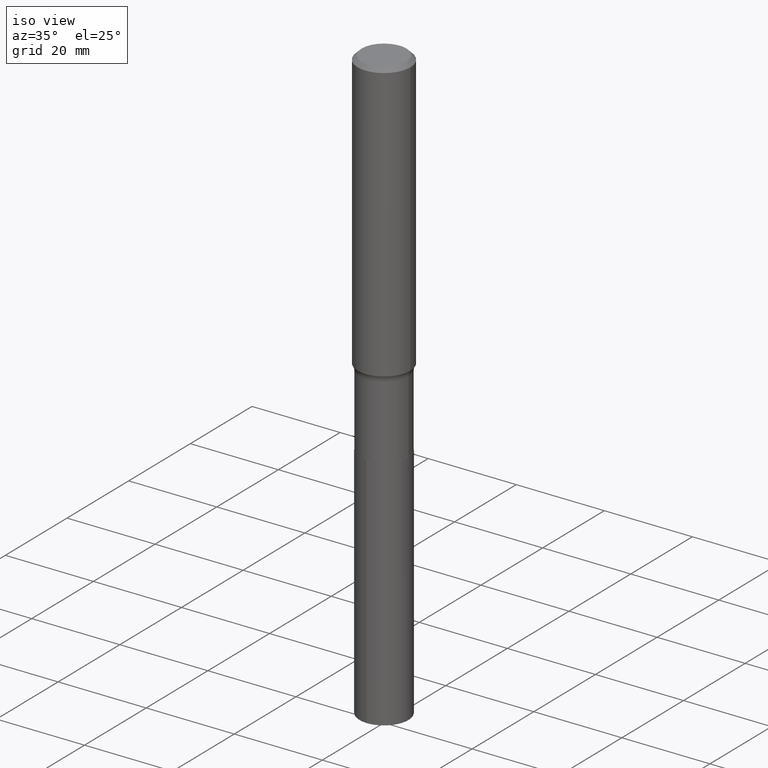
[diagram: clean part render]
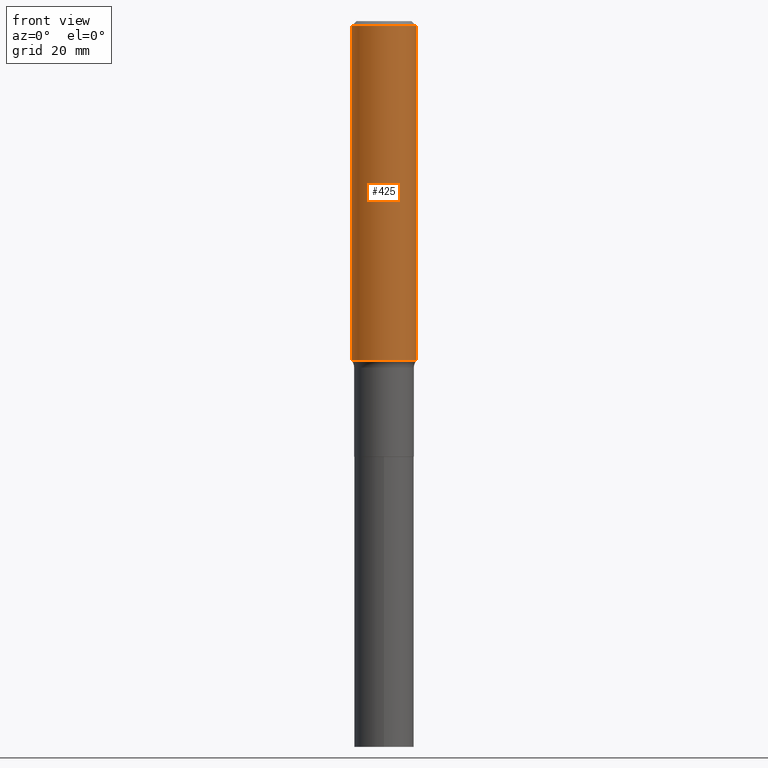
[diagram: tour spotlight — one face highlighted and labeled with its STEP entity id]
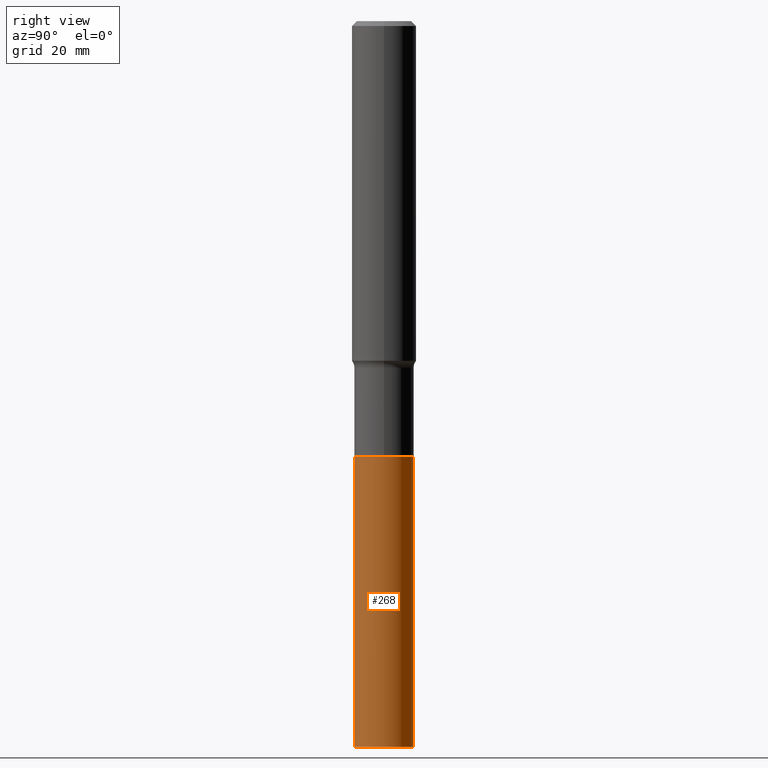
[diagram: tour spotlight — one face highlighted and labeled with its STEP entity id]
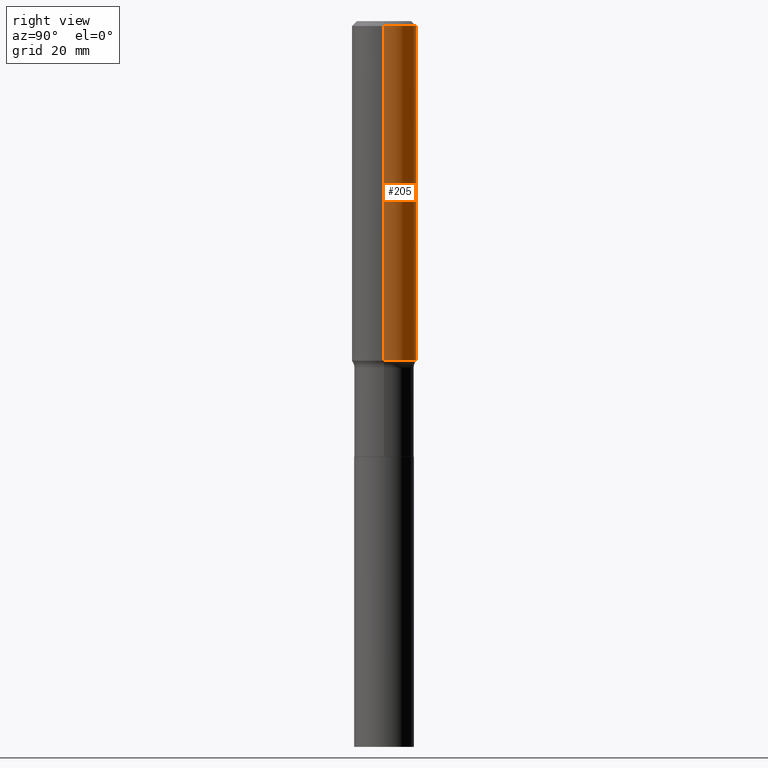
[diagram: tour spotlight — one face highlighted and labeled with its STEP entity id]
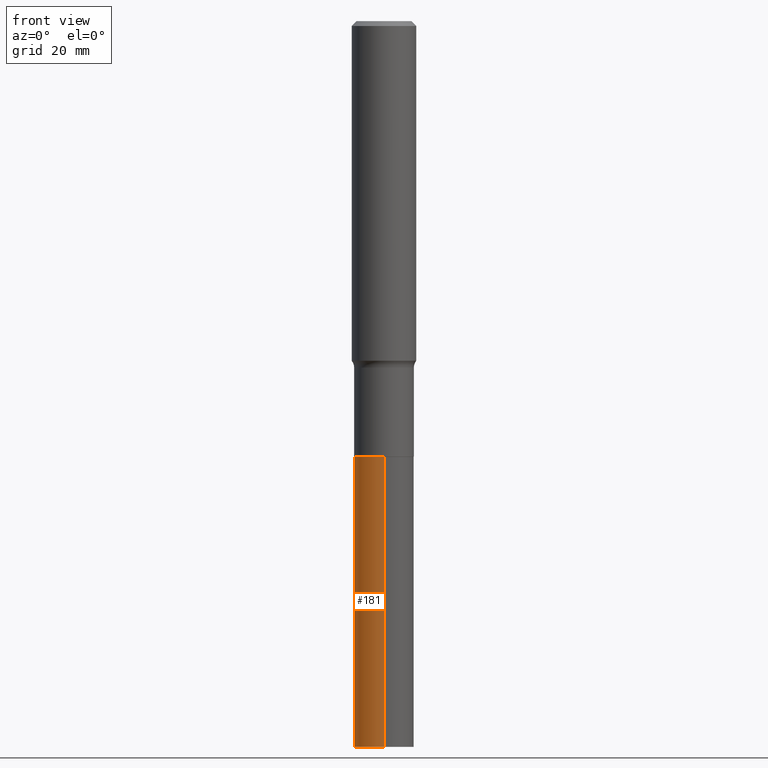
[diagram: tour spotlight — one face highlighted and labeled with its STEP entity id]
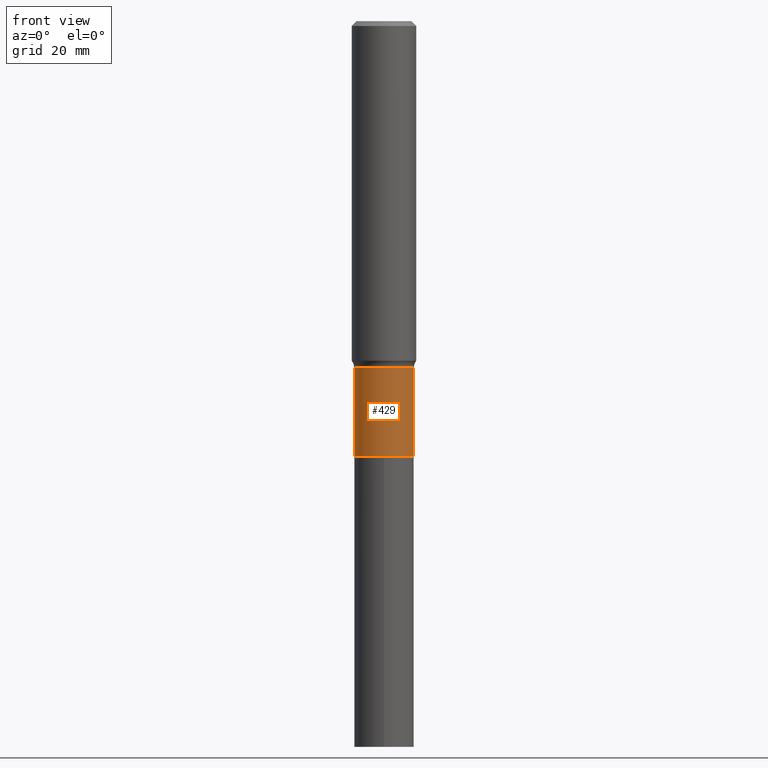
[diagram: tour spotlight — one face highlighted and labeled with its STEP entity id]
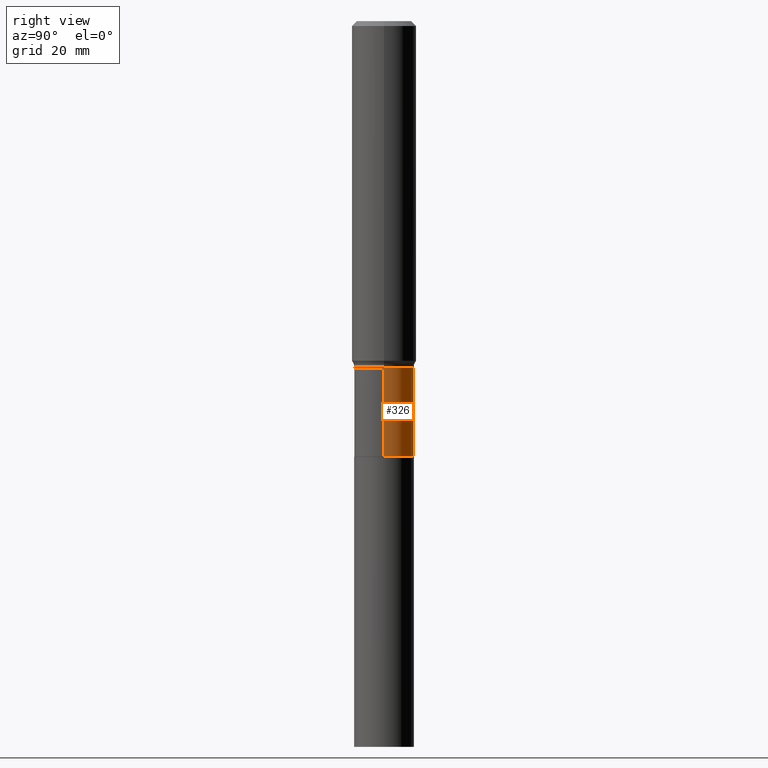
[diagram: tour spotlight — one face highlighted and labeled with its STEP entity id]
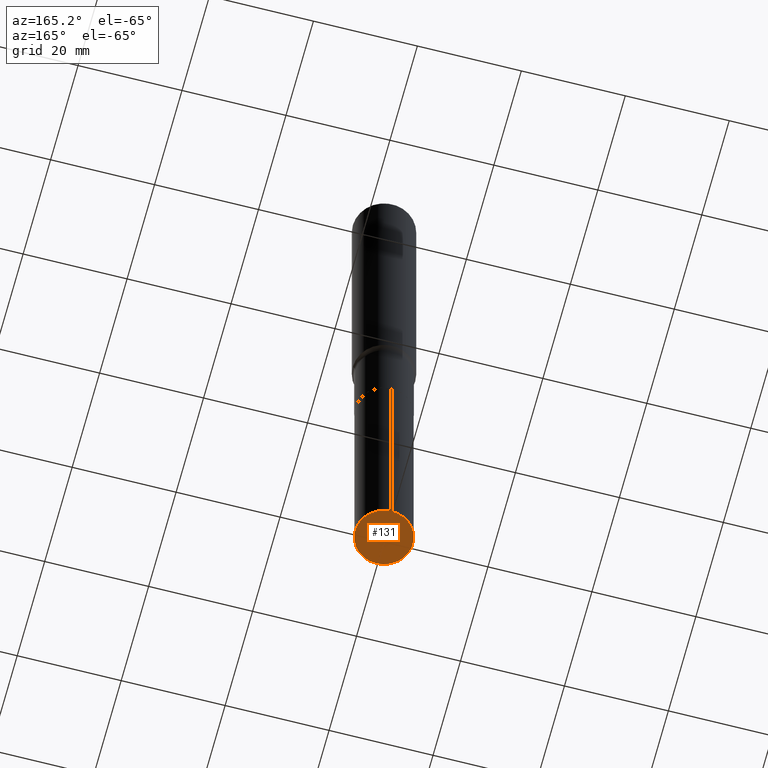
[diagram: tour spotlight — one face highlighted and labeled with its STEP entity id]
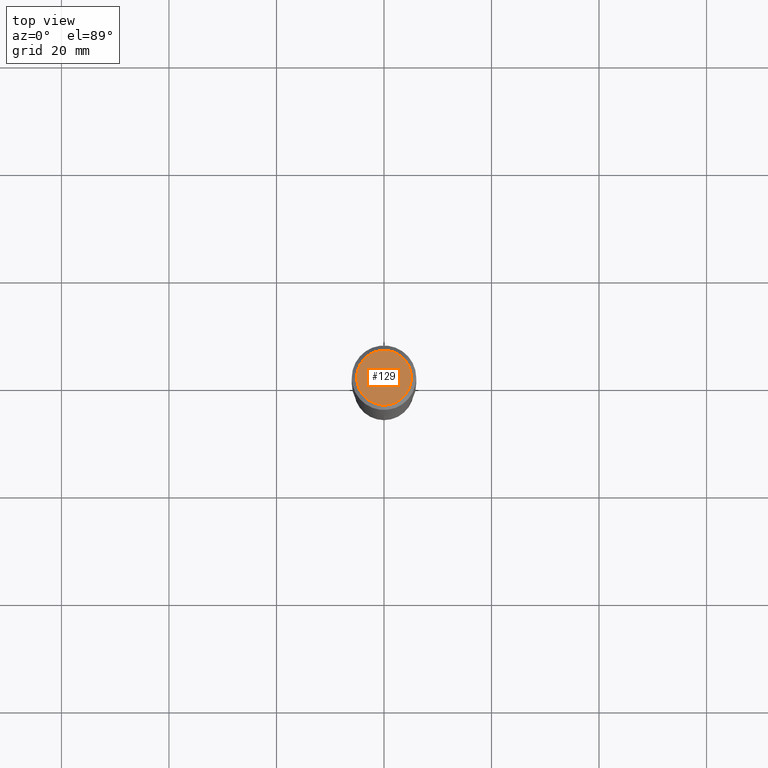
[diagram: tour spotlight — one face highlighted and labeled with its STEP entity id]
A machine part: a face-by-face anatomy tour. The part has 16 B-rep faces; the first image is the clean iso view, then the 8 largest visible faces are spotlighted one at a time (largest first), each with its STEP entity span.

Face 1 — front view, entity #425. In plain terms, the highlighted cylindrical surface (edge-blend (fillet) strip) has radius 5.9995 mm, axis along (-0, 0, 1).
Definition (entity closure, byte-faithful):
#14 = CARTESIAN_POINT ( 'NONE',  ( -0.2361999999999999933, -2.725578971937181462E-15, -0.03543000000000023908 ) ) ;
#19 = EDGE_CURVE ( 'NONE', #328, #401, #293, .T. ) ;
#27 = DIRECTION ( 'NONE',  ( -2.445468806185136597E-29, 3.491481338843145583E-15, 1.000000000000000000 ) ) ;
#32 = DIRECTION ( 'NONE',  ( -2.445468806185136597E-29, 3.491481338843145583E-15, 1.000000000000000000 ) ) ;
#42 = EDGE_CURVE ( 'NONE', #113, #401, #126, .T. ) ;
#44 = EDGE_LOOP ( 'NONE', ( #458, #137, #122, #221 ) ) ;
#50 = VECTOR ( 'NONE', #356, 39.37007874015748143 ) ;
#58 = EDGE_CURVE ( 'NONE', #343, #328, #93, .T. ) ;
#63 = CARTESIAN_POINT ( 'NONE',  ( -0.2362000000000001598, 1.678301941865357775E-15, -1.161852468318209598E-29 ) ) ;
#64 = CARTESIAN_POINT ( 'NONE',  ( 8.664295980313998742E-31, -1.237031838352134818E-16, -0.03543000000000023908 ) ) ;
#72 = CARTESIAN_POINT ( 'NONE',  ( 0.2362000000000003264, -1.033343442823936694E-14, -2.487213248760255624 ) ) ;
#75 = CARTESIAN_POINT ( 'NONE',  ( -0.2362000000000003264, -7.005756701904507710E-15, -2.487213248760255624 ) ) ;
#92 = CARTESIAN_POINT ( 'NONE',  ( 0.000000000000000000, 0.000000000000000000, 0.000000000000000000 ) ) ;
#93 = LINE ( 'NONE', #63, #50 ) ;
#96 = AXIS2_PLACEMENT_3D ( 'NONE', #64, #32, #304 ) ;
#101 = CIRCLE ( 'NONE', #446, 0.2362000000000003264 ) ;
#113 = VERTEX_POINT ( 'NONE', #72 ) ;
#122 = ORIENTED_EDGE ( 'NONE', *, *, #42, .T. ) ;
#126 = LINE ( 'NONE', #312, #186 ) ;
#137 = ORIENTED_EDGE ( 'NONE', *, *, #286, .T. ) ;
#164 = CYLINDRICAL_SURFACE ( 'NONE', #325, 0.2362000000000001598 ) ;
#186 = VECTOR ( 'NONE', #196, 39.37007874015748143 ) ;
#193 = DIRECTION ( 'NONE',  ( -2.445468806185136597E-29, 3.491481338843145583E-15, 1.000000000000000000 ) ) ;
#196 = DIRECTION ( 'NONE',  ( -2.445468806185136877E-29, 3.491481338843145188E-15, 1.000000000000000000 ) ) ;
#204 = FACE_OUTER_BOUND ( 'NONE', #44, .T. ) ;
#209 = DIRECTION ( 'NONE',  ( 1.000000000000000000, -6.982962677686266711E-15, 4.876176775795936353E-29 ) ) ;
#221 = ORIENTED_EDGE ( 'NONE', *, *, #19, .F. ) ;
#256 = CARTESIAN_POINT ( 'NONE',  ( 6.082402414173597497E-29, -8.684058643769867259E-15, -2.487213248760255624 ) ) ;
#286 = EDGE_CURVE ( 'NONE', #343, #113, #101, .T. ) ;
#293 = CIRCLE ( 'NONE', #96, 0.2361999999999999933 ) ;
#304 = DIRECTION ( 'NONE',  ( 1.000000000000000000, -6.982962677686266711E-15, 0.000000000000000000 ) ) ;
#312 = CARTESIAN_POINT ( 'NONE',  ( 0.2362000000000001598, -1.649375784469497314E-15, 1.151752954443000929E-29 ) ) ;
#318 = CARTESIAN_POINT ( 'NONE',  ( 0.2361999999999999933, -1.773078968304709711E-15, -0.03543000000000023908 ) ) ;
#325 = AXIS2_PLACEMENT_3D ( 'NONE', #92, #27, #209 ) ;
#328 = VERTEX_POINT ( 'NONE', #14 ) ;
#343 = VERTEX_POINT ( 'NONE', #75 ) ;
#356 = DIRECTION ( 'NONE',  ( -2.445468806185136877E-29, 3.491481338843145188E-15, 1.000000000000000000 ) ) ;
#370 = DIRECTION ( 'NONE',  ( 1.000000000000000000, -6.982962677686270655E-15, 0.000000000000000000 ) ) ;
#401 = VERTEX_POINT ( 'NONE', #318 ) ;
#425 = ADVANCED_FACE ( 'NONE', ( #204 ), #164, .T. ) ;
#446 = AXIS2_PLACEMENT_3D ( 'NONE', #256, #193, #370 ) ;
#458 = ORIENTED_EDGE ( 'NONE', *, *, #58, .F. ) ;

Face 2 — right view, entity #268. In plain terms, the highlighted cylindrical surface (edge-blend (fillet) strip) has radius 5.5499 mm, axis along (-0, 0, 1).
Definition (entity closure, byte-faithful):
#1 = CARTESIAN_POINT ( 'NONE',  ( -1.525777345074319177E-15, -0.2185000000000185405, -5.315000000000000391 ) ) ;
#23 = DIRECTION ( 'NONE',  ( -6.982962677686265922E-15, -1.000000000000000000, 5.001094725243502542E-15 ) ) ;
#46 = DIRECTION ( 'NONE',  ( -2.445737530587578084E-29, 3.491096510204006240E-15, 1.000000000000000000 ) ) ;
#71 = CARTESIAN_POINT ( 'NONE',  ( 1.552535877635949067E-15, 0.2184999999999888698, -3.189000000000000945 ) ) ;
#85 = EDGE_LOOP ( 'NONE', ( #291, #332, #450, #459 ) ) ;
#89 = DIRECTION ( 'NONE',  ( -2.445737530587578084E-29, 3.491096510204006240E-15, 1.000000000000000000 ) ) ;
#104 = VERTEX_POINT ( 'NONE', #1 ) ;
#141 = AXIS2_PLACEMENT_3D ( 'NONE', #444, #46, #294 ) ;
#143 = FACE_OUTER_BOUND ( 'NONE', #85, .T. ) ;
#150 = VERTEX_POINT ( 'NONE', #71 ) ;
#152 = EDGE_CURVE ( 'NONE', #260, #150, #166, .T. ) ;
#159 = CIRCLE ( 'NONE', #465, 0.2184999999999999998 ) ;
#166 = CIRCLE ( 'NONE', #313, 0.2184999999999999998 ) ;
#179 = VECTOR ( 'NONE', #89, 39.37007874015748143 ) ;
#182 = CYLINDRICAL_SURFACE ( 'NONE', #141, 0.2184999999999999998 ) ;
#185 = CARTESIAN_POINT ( 'NONE',  ( -1.525777345074371242E-15, -0.2185000000000111298, -3.188999999999999613 ) ) ;
#195 = DIRECTION ( 'NONE',  ( -2.445737530587578084E-29, 3.491096510204006240E-15, 1.000000000000000000 ) ) ;
#222 = CARTESIAN_POINT ( 'NONE',  ( 1.552535877635896607E-15, 0.2184999999999888698, -3.189000000000000945 ) ) ;
#235 = EDGE_CURVE ( 'NONE', #104, #260, #411, .T. ) ;
#259 = CARTESIAN_POINT ( 'NONE',  ( 1.552535877635922837E-15, 0.2184999999999814591, -5.315000000000003055 ) ) ;
#260 = VERTEX_POINT ( 'NONE', #185 ) ;
#263 = DIRECTION ( 'NONE',  ( -2.445737530587578084E-29, 3.491096510204006240E-15, 1.000000000000000000 ) ) ;
#268 = ADVANCED_FACE ( 'NONE', ( #143 ), #182, .T. ) ;
#276 = CARTESIAN_POINT ( 'NONE',  ( 7.798600022924401307E-29, -1.113433398957079310E-14, -3.189000000000000501 ) ) ;
#291 = ORIENTED_EDGE ( 'NONE', *, *, #442, .T. ) ;
#294 = DIRECTION ( 'NONE',  ( -6.982962677686265922E-15, -1.000000000000000000, 2.500547362621751271E-15 ) ) ;
#313 = AXIS2_PLACEMENT_3D ( 'NONE', #276, #433, #321 ) ;
#321 = DIRECTION ( 'NONE',  ( -6.982962677686265922E-15, -1.000000000000000000, 2.500547362621751271E-15 ) ) ;
#332 = ORIENTED_EDGE ( 'NONE', *, *, #391, .T. ) ;
#336 = CARTESIAN_POINT ( 'NONE',  ( -1.525777345074371242E-15, -0.2185000000000111298, -3.188999999999999613 ) ) ;
#357 = VERTEX_POINT ( 'NONE', #259 ) ;
#362 = VECTOR ( 'NONE', #263, 39.37007874015748143 ) ;
#388 = CARTESIAN_POINT ( 'NONE',  ( 1.299823801295359673E-28, -1.855640517026451512E-14, -5.315000000000001279 ) ) ;
#391 = EDGE_CURVE ( 'NONE', #357, #150, #417, .T. ) ;
#411 = LINE ( 'NONE', #336, #362 ) ;
#417 = LINE ( 'NONE', #222, #179 ) ;
#433 = DIRECTION ( 'NONE',  ( -2.445737530587578084E-29, 3.491096510204006240E-15, 1.000000000000000000 ) ) ;
#442 = EDGE_CURVE ( 'NONE', #104, #357, #159, .T. ) ;
#444 = CARTESIAN_POINT ( 'NONE',  ( 7.798600022924401307E-29, -1.113433398957079310E-14, -3.189000000000000501 ) ) ;
#450 = ORIENTED_EDGE ( 'NONE', *, *, #152, .F. ) ;
#459 = ORIENTED_EDGE ( 'NONE', *, *, #235, .F. ) ;
#465 = AXIS2_PLACEMENT_3D ( 'NONE', #388, #195, #23 ) ;

Face 3 — right view, entity #205. In plain terms, the highlighted cylindrical surface (edge-blend (fillet) strip) has radius 5.9995 mm, axis along (-0, 0, 1).
Definition (entity closure, byte-faithful):
#4 = AXIS2_PLACEMENT_3D ( 'NONE', #225, #375, #15 ) ;
#14 = CARTESIAN_POINT ( 'NONE',  ( -0.2361999999999999933, -2.725578971937181462E-15, -0.03543000000000023908 ) ) ;
#15 = DIRECTION ( 'NONE',  ( 1.000000000000000000, -6.982962677686266711E-15, 4.876176775795936353E-29 ) ) ;
#24 = ORIENTED_EDGE ( 'NONE', *, *, #42, .F. ) ;
#42 = EDGE_CURVE ( 'NONE', #113, #401, #126, .T. ) ;
#50 = VECTOR ( 'NONE', #356, 39.37007874015748143 ) ;
#58 = EDGE_CURVE ( 'NONE', #343, #328, #93, .T. ) ;
#59 = EDGE_CURVE ( 'NONE', #401, #328, #106, .T. ) ;
#63 = CARTESIAN_POINT ( 'NONE',  ( -0.2362000000000001598, 1.678301941865357775E-15, -1.161852468318209598E-29 ) ) ;
#72 = CARTESIAN_POINT ( 'NONE',  ( 0.2362000000000003264, -1.033343442823936694E-14, -2.487213248760255624 ) ) ;
#75 = CARTESIAN_POINT ( 'NONE',  ( -0.2362000000000003264, -7.005756701904507710E-15, -2.487213248760255624 ) ) ;
#93 = LINE ( 'NONE', #63, #50 ) ;
#106 = CIRCLE ( 'NONE', #376, 0.2361999999999999933 ) ;
#109 = CYLINDRICAL_SURFACE ( 'NONE', #4, 0.2362000000000001598 ) ;
#111 = AXIS2_PLACEMENT_3D ( 'NONE', #233, #167, #359 ) ;
#113 = VERTEX_POINT ( 'NONE', #72 ) ;
#116 = FACE_OUTER_BOUND ( 'NONE', #420, .T. ) ;
#126 = LINE ( 'NONE', #312, #186 ) ;
#167 = DIRECTION ( 'NONE',  ( -2.445468806185136597E-29, 3.491481338843145583E-15, 1.000000000000000000 ) ) ;
#186 = VECTOR ( 'NONE', #196, 39.37007874015748143 ) ;
#196 = DIRECTION ( 'NONE',  ( -2.445468806185136877E-29, 3.491481338843145188E-15, 1.000000000000000000 ) ) ;
#205 = ADVANCED_FACE ( 'NONE', ( #116 ), #109, .T. ) ;
#225 = CARTESIAN_POINT ( 'NONE',  ( 0.000000000000000000, 0.000000000000000000, 0.000000000000000000 ) ) ;
#233 = CARTESIAN_POINT ( 'NONE',  ( 6.082402414173597497E-29, -8.684058643769867259E-15, -2.487213248760255624 ) ) ;
#234 = CARTESIAN_POINT ( 'NONE',  ( 8.664295980313998742E-31, -1.237031838352134818E-16, -0.03543000000000023908 ) ) ;
#309 = ORIENTED_EDGE ( 'NONE', *, *, #58, .T. ) ;
#312 = CARTESIAN_POINT ( 'NONE',  ( 0.2362000000000001598, -1.649375784469497314E-15, 1.151752954443000929E-29 ) ) ;
#315 = DIRECTION ( 'NONE',  ( -2.445468806185136597E-29, 3.491481338843145583E-15, 1.000000000000000000 ) ) ;
#318 = CARTESIAN_POINT ( 'NONE',  ( 0.2361999999999999933, -1.773078968304709711E-15, -0.03543000000000023908 ) ) ;
#328 = VERTEX_POINT ( 'NONE', #14 ) ;
#343 = VERTEX_POINT ( 'NONE', #75 ) ;
#346 = ORIENTED_EDGE ( 'NONE', *, *, #59, .F. ) ;
#351 = CIRCLE ( 'NONE', #111, 0.2362000000000003264 ) ;
#356 = DIRECTION ( 'NONE',  ( -2.445468806185136877E-29, 3.491481338843145188E-15, 1.000000000000000000 ) ) ;
#359 = DIRECTION ( 'NONE',  ( 1.000000000000000000, -6.982962677686270655E-15, 0.000000000000000000 ) ) ;
#375 = DIRECTION ( 'NONE',  ( -2.445468806185136597E-29, 3.491481338843145583E-15, 1.000000000000000000 ) ) ;
#376 = AXIS2_PLACEMENT_3D ( 'NONE', #234, #315, #466 ) ;
#401 = VERTEX_POINT ( 'NONE', #318 ) ;
#412 = ORIENTED_EDGE ( 'NONE', *, *, #445, .T. ) ;
#420 = EDGE_LOOP ( 'NONE', ( #412, #309, #346, #24 ) ) ;
#445 = EDGE_CURVE ( 'NONE', #113, #343, #351, .T. ) ;
#466 = DIRECTION ( 'NONE',  ( 1.000000000000000000, -6.982962677686266711E-15, 0.000000000000000000 ) ) ;

Face 4 — front view, entity #181. In plain terms, the highlighted cylindrical surface (edge-blend (fillet) strip) has radius 5.5499 mm, axis along (-0, 0, 1).
Definition (entity closure, byte-faithful):
#1 = CARTESIAN_POINT ( 'NONE',  ( -1.525777345074319177E-15, -0.2185000000000185405, -5.315000000000000391 ) ) ;
#3 = DIRECTION ( 'NONE',  ( -6.982962677686265922E-15, -1.000000000000000000, 2.500547362621751271E-15 ) ) ;
#22 = CIRCLE ( 'NONE', #350, 0.2184999999999999998 ) ;
#34 = DIRECTION ( 'NONE',  ( -2.445737530587578084E-29, 3.491096510204006240E-15, 1.000000000000000000 ) ) ;
#38 = AXIS2_PLACEMENT_3D ( 'NONE', #384, #34, #3 ) ;
#56 = ORIENTED_EDGE ( 'NONE', *, *, #69, .F. ) ;
#69 = EDGE_CURVE ( 'NONE', #150, #260, #198, .T. ) ;
#71 = CARTESIAN_POINT ( 'NONE',  ( 1.552535877635949067E-15, 0.2184999999999888698, -3.189000000000000945 ) ) ;
#80 = DIRECTION ( 'NONE',  ( -2.445737530587578084E-29, 3.491096510204006240E-15, 1.000000000000000000 ) ) ;
#83 = EDGE_LOOP ( 'NONE', ( #300, #258, #155, #56 ) ) ;
#89 = DIRECTION ( 'NONE',  ( -2.445737530587578084E-29, 3.491096510204006240E-15, 1.000000000000000000 ) ) ;
#104 = VERTEX_POINT ( 'NONE', #1 ) ;
#149 = CYLINDRICAL_SURFACE ( 'NONE', #236, 0.2184999999999999998 ) ;
#150 = VERTEX_POINT ( 'NONE', #71 ) ;
#155 = ORIENTED_EDGE ( 'NONE', *, *, #235, .T. ) ;
#156 = DIRECTION ( 'NONE',  ( -6.982962677686265922E-15, -1.000000000000000000, 5.001094725243502542E-15 ) ) ;
#179 = VECTOR ( 'NONE', #89, 39.37007874015748143 ) ;
#181 = ADVANCED_FACE ( 'NONE', ( #432 ), #149, .T. ) ;
#185 = CARTESIAN_POINT ( 'NONE',  ( -1.525777345074371242E-15, -0.2185000000000111298, -3.188999999999999613 ) ) ;
#198 = CIRCLE ( 'NONE', #38, 0.2184999999999999998 ) ;
#222 = CARTESIAN_POINT ( 'NONE',  ( 1.552535877635896607E-15, 0.2184999999999888698, -3.189000000000000945 ) ) ;
#231 = CARTESIAN_POINT ( 'NONE',  ( 1.299823801295359673E-28, -1.855640517026451512E-14, -5.315000000000001279 ) ) ;
#235 = EDGE_CURVE ( 'NONE', #104, #260, #411, .T. ) ;
#236 = AXIS2_PLACEMENT_3D ( 'NONE', #265, #80, #301 ) ;
#258 = ORIENTED_EDGE ( 'NONE', *, *, #393, .T. ) ;
#259 = CARTESIAN_POINT ( 'NONE',  ( 1.552535877635922837E-15, 0.2184999999999814591, -5.315000000000003055 ) ) ;
#260 = VERTEX_POINT ( 'NONE', #185 ) ;
#263 = DIRECTION ( 'NONE',  ( -2.445737530587578084E-29, 3.491096510204006240E-15, 1.000000000000000000 ) ) ;
#265 = CARTESIAN_POINT ( 'NONE',  ( 7.798600022924401307E-29, -1.113433398957079310E-14, -3.189000000000000501 ) ) ;
#300 = ORIENTED_EDGE ( 'NONE', *, *, #391, .F. ) ;
#301 = DIRECTION ( 'NONE',  ( -6.982962677686265922E-15, -1.000000000000000000, 2.500547362621751271E-15 ) ) ;
#336 = CARTESIAN_POINT ( 'NONE',  ( -1.525777345074371242E-15, -0.2185000000000111298, -3.188999999999999613 ) ) ;
#350 = AXIS2_PLACEMENT_3D ( 'NONE', #231, #380, #156 ) ;
#357 = VERTEX_POINT ( 'NONE', #259 ) ;
#362 = VECTOR ( 'NONE', #263, 39.37007874015748143 ) ;
#380 = DIRECTION ( 'NONE',  ( -2.445737530587578084E-29, 3.491096510204006240E-15, 1.000000000000000000 ) ) ;
#384 = CARTESIAN_POINT ( 'NONE',  ( 7.798600022924401307E-29, -1.113433398957079310E-14, -3.189000000000000501 ) ) ;
#391 = EDGE_CURVE ( 'NONE', #357, #150, #417, .T. ) ;
#393 = EDGE_CURVE ( 'NONE', #357, #104, #22, .T. ) ;
#411 = LINE ( 'NONE', #336, #362 ) ;
#417 = LINE ( 'NONE', #222, #179 ) ;
#432 = FACE_OUTER_BOUND ( 'NONE', #83, .T. ) ;

Face 5 — front view, entity #429. In plain terms, the highlighted cylindrical surface (edge-blend (fillet) strip) has radius 5.5499 mm, axis along (-0, 0, 1).
Definition (entity closure, byte-faithful):
#84 = EDGE_CURVE ( 'NONE', #353, #142, #189, .T. ) ;
#90 = DIRECTION ( 'NONE',  ( 1.000000000000000000, -6.982962677686266711E-15, 4.876176775795935793E-29 ) ) ;
#91 = EDGE_CURVE ( 'NONE', #413, #248, #295, .T. ) ;
#98 = CARTESIAN_POINT ( 'NONE',  ( 0.000000000000000000, 0.000000000000000000, 0.000000000000000000 ) ) ;
#134 = AXIS2_PLACEMENT_3D ( 'NONE', #98, #274, #90 ) ;
#142 = VERTEX_POINT ( 'NONE', #449 ) ;
#157 = EDGE_LOOP ( 'NONE', ( #364, #220, #402, #192 ) ) ;
#161 = LINE ( 'NONE', #355, #273 ) ;
#163 = LINE ( 'NONE', #237, #190 ) ;
#169 = DIRECTION ( 'NONE',  ( 1.000000000000000000, -6.982962677686269866E-15, 0.000000000000000000 ) ) ;
#174 = DIRECTION ( 'NONE',  ( -2.445468806185136597E-29, 3.491481338843145583E-15, 1.000000000000000000 ) ) ;
#189 = CIRCLE ( 'NONE', #278, 0.2184999999999999443 ) ;
#190 = VECTOR ( 'NONE', #201, 39.37007874015748143 ) ;
#192 = ORIENTED_EDGE ( 'NONE', *, *, #84, .F. ) ;
#201 = DIRECTION ( 'NONE',  ( -2.445468806185136877E-29, 3.491481338843145188E-15, 1.000000000000000000 ) ) ;
#220 = ORIENTED_EDGE ( 'NONE', *, *, #91, .T. ) ;
#229 = CARTESIAN_POINT ( 'NONE',  ( 0.2184999999999999720, -1.265836559397582015E-14, -3.188500000000000334 ) ) ;
#237 = CARTESIAN_POINT ( 'NONE',  ( 0.2184999999999999443, -1.525777345074448945E-15, 1.065444625511411679E-29 ) ) ;
#242 = CARTESIAN_POINT ( 'NONE',  ( 7.797377288521307384E-29, -1.113258824890137081E-14, -3.188500000000000334 ) ) ;
#248 = VERTEX_POINT ( 'NONE', #229 ) ;
#249 = CARTESIAN_POINT ( 'NONE',  ( 6.205132548814167123E-29, -8.859284749180598143E-15, -2.537400000000000766 ) ) ;
#250 = AXIS2_PLACEMENT_3D ( 'NONE', #242, #398, #169 ) ;
#261 = CARTESIAN_POINT ( 'NONE',  ( -0.2184999999999999443, -8.443400621405166163E-15, -2.537400000000000766 ) ) ;
#271 = CARTESIAN_POINT ( 'NONE',  ( -0.2184999999999999720, -8.443400621405166163E-15, -3.188500000000000334 ) ) ;
#273 = VECTOR ( 'NONE', #383, 39.37007874015748143 ) ;
#274 = DIRECTION ( 'NONE',  ( -2.445468806185136597E-29, 3.491481338843145583E-15, 1.000000000000000000 ) ) ;
#278 = AXIS2_PLACEMENT_3D ( 'NONE', #249, #174, #280 ) ;
#280 = DIRECTION ( 'NONE',  ( 1.000000000000000000, -6.982962677686270655E-15, 0.000000000000000000 ) ) ;
#295 = CIRCLE ( 'NONE', #250, 0.2184999999999999720 ) ;
#308 = CYLINDRICAL_SURFACE ( 'NONE', #134, 0.2184999999999999443 ) ;
#310 = FACE_OUTER_BOUND ( 'NONE', #157, .T. ) ;
#353 = VERTEX_POINT ( 'NONE', #261 ) ;
#355 = CARTESIAN_POINT ( 'NONE',  ( -0.2184999999999999443, 1.552535877635818510E-15, -1.074787317220696738E-29 ) ) ;
#364 = ORIENTED_EDGE ( 'NONE', *, *, #467, .F. ) ;
#383 = DIRECTION ( 'NONE',  ( -2.445468806185136877E-29, 3.491481338843145188E-15, 1.000000000000000000 ) ) ;
#398 = DIRECTION ( 'NONE',  ( -2.445468806185136597E-29, 3.491481338843145583E-15, 1.000000000000000000 ) ) ;
#402 = ORIENTED_EDGE ( 'NONE', *, *, #408, .T. ) ;
#408 = EDGE_CURVE ( 'NONE', #248, #142, #163, .T. ) ;
#413 = VERTEX_POINT ( 'NONE', #271 ) ;
#429 = ADVANCED_FACE ( 'NONE', ( #310 ), #308, .T. ) ;
#449 = CARTESIAN_POINT ( 'NONE',  ( 0.2184999999999999443, -1.038506209425504906E-14, -2.537400000000000766 ) ) ;
#467 = EDGE_CURVE ( 'NONE', #413, #353, #161, .T. ) ;

Face 6 — right view, entity #326. In plain terms, the highlighted cylindrical surface (edge-blend (fillet) strip) has radius 5.5499 mm, axis along (-0, 0, 1).
Definition (entity closure, byte-faithful):
#78 = CARTESIAN_POINT ( 'NONE',  ( 7.797377288521307384E-29, -1.113258824890137081E-14, -3.188500000000000334 ) ) ;
#81 = ORIENTED_EDGE ( 'NONE', *, *, #408, .F. ) ;
#119 = DIRECTION ( 'NONE',  ( -2.445468806185136597E-29, 3.491481338843145583E-15, 1.000000000000000000 ) ) ;
#123 = DIRECTION ( 'NONE',  ( 1.000000000000000000, -6.982962677686269866E-15, 0.000000000000000000 ) ) ;
#142 = VERTEX_POINT ( 'NONE', #449 ) ;
#148 = AXIS2_PLACEMENT_3D ( 'NONE', #78, #454, #123 ) ;
#153 = FACE_OUTER_BOUND ( 'NONE', #283, .T. ) ;
#161 = LINE ( 'NONE', #355, #273 ) ;
#163 = LINE ( 'NONE', #237, #190 ) ;
#190 = VECTOR ( 'NONE', #201, 39.37007874015748143 ) ;
#191 = DIRECTION ( 'NONE',  ( 1.000000000000000000, -6.982962677686270655E-15, 0.000000000000000000 ) ) ;
#201 = DIRECTION ( 'NONE',  ( -2.445468806185136877E-29, 3.491481338843145188E-15, 1.000000000000000000 ) ) ;
#207 = CIRCLE ( 'NONE', #323, 0.2184999999999999443 ) ;
#229 = CARTESIAN_POINT ( 'NONE',  ( 0.2184999999999999720, -1.265836559397582015E-14, -3.188500000000000334 ) ) ;
#237 = CARTESIAN_POINT ( 'NONE',  ( 0.2184999999999999443, -1.525777345074448945E-15, 1.065444625511411679E-29 ) ) ;
#244 = EDGE_CURVE ( 'NONE', #142, #353, #207, .T. ) ;
#247 = EDGE_CURVE ( 'NONE', #248, #413, #342, .T. ) ;
#248 = VERTEX_POINT ( 'NONE', #229 ) ;
#261 = CARTESIAN_POINT ( 'NONE',  ( -0.2184999999999999443, -8.443400621405166163E-15, -2.537400000000000766 ) ) ;
#271 = CARTESIAN_POINT ( 'NONE',  ( -0.2184999999999999720, -8.443400621405166163E-15, -3.188500000000000334 ) ) ;
#273 = VECTOR ( 'NONE', #383, 39.37007874015748143 ) ;
#283 = EDGE_LOOP ( 'NONE', ( #337, #330, #306, #81 ) ) ;
#292 = CARTESIAN_POINT ( 'NONE',  ( 6.205132548814167123E-29, -8.859284749180598143E-15, -2.537400000000000766 ) ) ;
#303 = CYLINDRICAL_SURFACE ( 'NONE', #334, 0.2184999999999999443 ) ;
#306 = ORIENTED_EDGE ( 'NONE', *, *, #244, .F. ) ;
#323 = AXIS2_PLACEMENT_3D ( 'NONE', #292, #119, #191 ) ;
#326 = ADVANCED_FACE ( 'NONE', ( #153 ), #303, .T. ) ;
#330 = ORIENTED_EDGE ( 'NONE', *, *, #467, .T. ) ;
#334 = AXIS2_PLACEMENT_3D ( 'NONE', #347, #341, #338 ) ;
#337 = ORIENTED_EDGE ( 'NONE', *, *, #247, .T. ) ;
#338 = DIRECTION ( 'NONE',  ( 1.000000000000000000, -6.982962677686266711E-15, 4.876176775795935793E-29 ) ) ;
#341 = DIRECTION ( 'NONE',  ( -2.445468806185136597E-29, 3.491481338843145583E-15, 1.000000000000000000 ) ) ;
#342 = CIRCLE ( 'NONE', #148, 0.2184999999999999720 ) ;
#347 = CARTESIAN_POINT ( 'NONE',  ( 0.000000000000000000, 0.000000000000000000, 0.000000000000000000 ) ) ;
#353 = VERTEX_POINT ( 'NONE', #261 ) ;
#355 = CARTESIAN_POINT ( 'NONE',  ( -0.2184999999999999443, 1.552535877635818510E-15, -1.074787317220696738E-29 ) ) ;
#383 = DIRECTION ( 'NONE',  ( -2.445468806185136877E-29, 3.491481338843145188E-15, 1.000000000000000000 ) ) ;
#408 = EDGE_CURVE ( 'NONE', #248, #142, #163, .T. ) ;
#413 = VERTEX_POINT ( 'NONE', #271 ) ;
#449 = CARTESIAN_POINT ( 'NONE',  ( 0.2184999999999999443, -1.038506209425504906E-14, -2.537400000000000766 ) ) ;
#454 = DIRECTION ( 'NONE',  ( -2.445468806185136597E-29, 3.491481338843145583E-15, 1.000000000000000000 ) ) ;
#467 = EDGE_CURVE ( 'NONE', #413, #353, #161, .T. ) ;

Face 7 — auxiliary view, entity #131. In plain terms, the highlighted planar face has unit normal (-0, 0, 1).
Definition (entity closure, byte-faithful):
#1 = CARTESIAN_POINT ( 'NONE',  ( -1.525777345074319177E-15, -0.2185000000000185405, -5.315000000000000391 ) ) ;
#7 = CARTESIAN_POINT ( 'NONE',  ( -5.563619623239905406E-29, -4.513804178062054934E-14, -5.315000000000001279 ) ) ;
#22 = CIRCLE ( 'NONE', #350, 0.2184999999999999998 ) ;
#23 = DIRECTION ( 'NONE',  ( -6.982962677686265922E-15, -1.000000000000000000, 5.001094725243502542E-15 ) ) ;
#79 = FACE_OUTER_BOUND ( 'NONE', #227, .T. ) ;
#104 = VERTEX_POINT ( 'NONE', #1 ) ;
#131 = ADVANCED_FACE ( 'NONE', ( #79 ), #372, .F. ) ;
#146 = DIRECTION ( 'NONE',  ( -6.982962677686265922E-15, -1.000000000000000000, 3.491096510204006240E-15 ) ) ;
#156 = DIRECTION ( 'NONE',  ( -6.982962677686265922E-15, -1.000000000000000000, 5.001094725243502542E-15 ) ) ;
#159 = CIRCLE ( 'NONE', #465, 0.2184999999999999998 ) ;
#195 = DIRECTION ( 'NONE',  ( -2.445737530587578084E-29, 3.491096510204006240E-15, 1.000000000000000000 ) ) ;
#227 = EDGE_LOOP ( 'NONE', ( #422, #367 ) ) ;
#231 = CARTESIAN_POINT ( 'NONE',  ( 1.299823801295359673E-28, -1.855640517026451512E-14, -5.315000000000001279 ) ) ;
#259 = CARTESIAN_POINT ( 'NONE',  ( 1.552535877635922837E-15, 0.2184999999999814591, -5.315000000000003055 ) ) ;
#296 = DIRECTION ( 'NONE',  ( -2.445737530587577803E-29, 3.491096510204006240E-15, 1.000000000000000000 ) ) ;
#307 = AXIS2_PLACEMENT_3D ( 'NONE', #7, #296, #146 ) ;
#350 = AXIS2_PLACEMENT_3D ( 'NONE', #231, #380, #156 ) ;
#357 = VERTEX_POINT ( 'NONE', #259 ) ;
#367 = ORIENTED_EDGE ( 'NONE', *, *, #393, .F. ) ;
#372 = PLANE ( 'NONE',  #307 ) ;
#380 = DIRECTION ( 'NONE',  ( -2.445737530587578084E-29, 3.491096510204006240E-15, 1.000000000000000000 ) ) ;
#388 = CARTESIAN_POINT ( 'NONE',  ( 1.299823801295359673E-28, -1.855640517026451512E-14, -5.315000000000001279 ) ) ;
#393 = EDGE_CURVE ( 'NONE', #357, #104, #22, .T. ) ;
#422 = ORIENTED_EDGE ( 'NONE', *, *, #442, .F. ) ;
#442 = EDGE_CURVE ( 'NONE', #104, #357, #159, .T. ) ;
#465 = AXIS2_PLACEMENT_3D ( 'NONE', #388, #195, #23 ) ;

Face 8 — top view, entity #129. In plain terms, the highlighted planar face has unit normal (0, -0, -1).
Definition (entity closure, byte-faithful):
#48 = DIRECTION ( 'NONE',  ( -2.445468806185136597E-29, 3.491481338843145583E-15, 1.000000000000000000 ) ) ;
#54 = VERTEX_POINT ( 'NONE', #424 ) ;
#55 = CARTESIAN_POINT ( 'NONE',  ( -1.001697619218023151E-46, 1.430158722866391908E-32, 4.096137381448114529E-18 ) ) ;
#67 = CARTESIAN_POINT ( 'NONE',  ( -5.008488096090115757E-47, 7.150793614331959538E-33, 2.048068690724057264E-18 ) ) ;
#87 = VERTEX_POINT ( 'NONE', #392 ) ;
#129 = ADVANCED_FACE ( 'NONE', ( #284 ), #403, .F. ) ;
#147 = ORIENTED_EDGE ( 'NONE', *, *, #218, .T. ) ;
#172 = CIRCLE ( 'NONE', #415, 0.2007700000000000040 ) ;
#177 = ORIENTED_EDGE ( 'NONE', *, *, #238, .T. ) ;
#180 = DIRECTION ( 'NONE',  ( -2.445468806185136597E-29, 3.491481338843145583E-15, 1.000000000000000000 ) ) ;
#187 = AXIS2_PLACEMENT_3D ( 'NONE', #67, #397, #365 ) ;
#218 = EDGE_CURVE ( 'NONE', #54, #87, #427, .T. ) ;
#238 = EDGE_CURVE ( 'NONE', #87, #54, #172, .T. ) ;
#284 = FACE_OUTER_BOUND ( 'NONE', #320, .T. ) ;
#320 = EDGE_LOOP ( 'NONE', ( #147, #177 ) ) ;
#344 = DIRECTION ( 'NONE',  ( 1.000000000000000000, -6.982962677686266711E-15, 4.876140833081945105E-29 ) ) ;
#365 = DIRECTION ( 'NONE',  ( -1.000000000000000000, 6.982962677686265922E-15, -4.876176775795935793E-29 ) ) ;
#371 = DIRECTION ( 'NONE',  ( 1.000000000000000000, -6.982962677686266711E-15, 4.876140833081945105E-29 ) ) ;
#386 = AXIS2_PLACEMENT_3D ( 'NONE', #448, #180, #344 ) ;
#392 = CARTESIAN_POINT ( 'NONE',  ( 0.2007700000000000040, -1.560767496960719869E-15, 4.096137381458473721E-18 ) ) ;
#397 = DIRECTION ( 'NONE',  ( 2.438088387897960049E-29, -3.491481338843145188E-15, -1.000000000000000000 ) ) ;
#403 = PLANE ( 'NONE',  #187 ) ;
#415 = AXIS2_PLACEMENT_3D ( 'NONE', #55, #48, #371 ) ;
#424 = CARTESIAN_POINT ( 'NONE',  ( -0.2007700000000000040, 1.463821008716676943E-15, 4.096137381438094301E-18 ) ) ;
#427 = CIRCLE ( 'NONE', #386, 0.2007700000000000040 ) ;
#448 = CARTESIAN_POINT ( 'NONE',  ( -1.001697619218023151E-46, 1.430158722866391908E-32, 4.096137381448114529E-18 ) ) ;